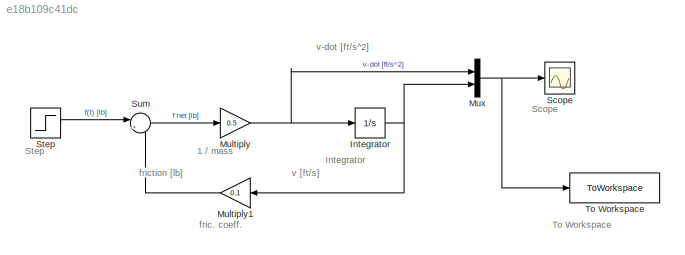
MODEL slx_e18b109c41dc
KIND model
CONFIG AbsTol = auto
CONFIG EnableMultiTasking = off
CONFIG FixedStep = auto
CONFIG MaxStep = auto
CONFIG MinStep = auto
CONFIG RelTol = 1e-9
CONFIG SampleTimeConstraint = Unconstrained
CONFIG SolverName = VariableStepAuto
CONFIG StartTime = 0.0
CONFIG StopTime = 120
BLOCK [Integrator] Integrator
BLOCK [Gain] Multiply
  Gain = 0.5
BLOCK [Gain] Multiply1
  Gain = 0.1
BLOCK [Mux] Mux
  DisplayOption = bar
  Inputs = 2
BLOCK [Scope] Scope
  Floating = off
  NumInputPorts = 1
  ScopeSpecificationString = Simulink.scopes.TimeScopeBlockCfg('CurrentConfiguration', extmgr.ConfigurationSet(extmgr.Configuration('Core','General UI',true),extmgr.Configuration('Core','Source UI',true),extmgr.Configuration('Sources','WiredSimulink',true),extmgr.Configuration('Visuals','Time Domain',true),extmgr.Configuration('Tools','Plot Navigation',true),extmgr.Configuration('Tools','Measurements',true)),'Version','2023b'...<+1ch>
BLOCK [Step] Step
  SampleTime = 0
BLOCK [Sum] Sum
  Inputs = |+-
BLOCK [ToWorkspace] To Workspace
  FixptAsFi = on
  MaxDataPoints = inf
  SampleTime = -1
  VariableName = simout
ANNOTATION (root): 1 / mass
ANNOTATION (root): Integrator
ANNOTATION (root): Scope
ANNOTATION (root): Step
ANNOTATION (root): To Workspace
ANNOTATION (root): fric. coeff.
ANNOTATION (root): friction [lb]
ANNOTATION (root): v [ft/s]
ANNOTATION (root): v-dot [ft/s^2]
NET Integrator:1 -> Multiply1:1, Mux:2
LINE Multiply1:1 -> Sum:2
NET Multiply:1 -> Integrator:1, Mux:1
NET Mux:1 -> Scope:1, To Workspace:1
LINE Step:1 -> Sum:1
LINE Sum:1 -> Multiply:1
note: NET lines group one-source signal fan-out (src -> all destinations, sorted); 1:1 wires keep LINE
